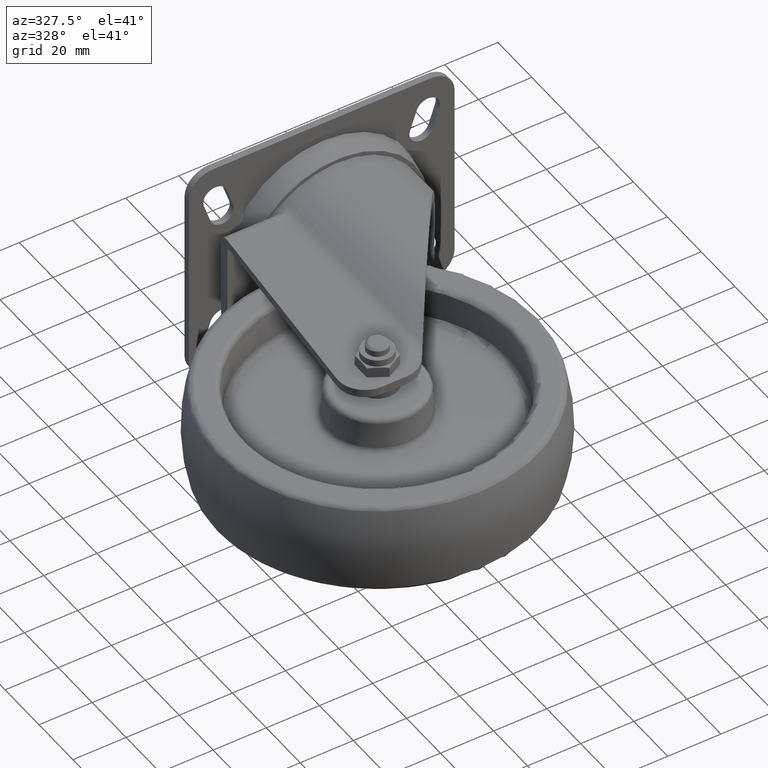
[diagram: clean part render]
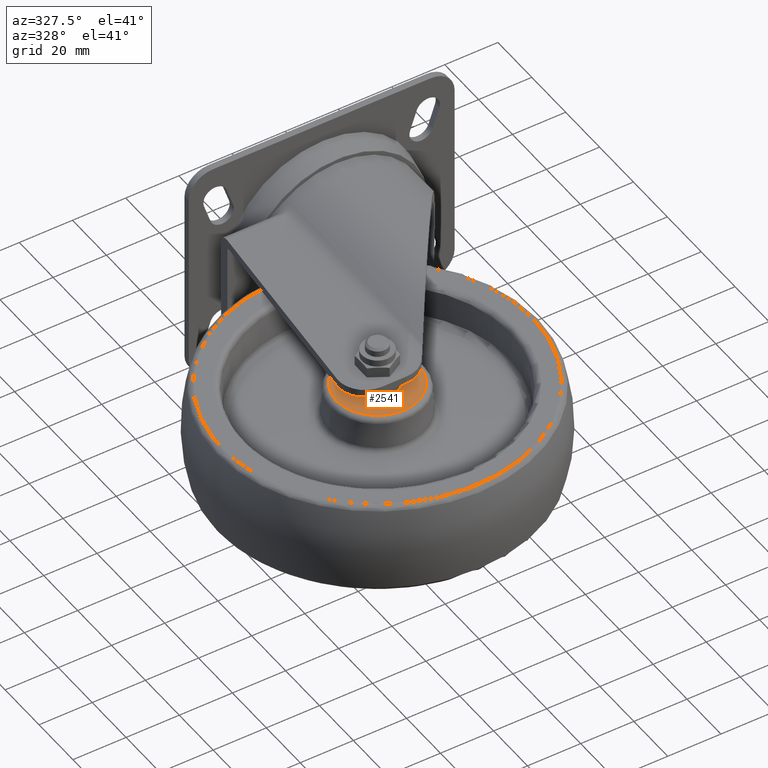
[diagram: same view with one face highlighted and labeled with its STEP entity id]
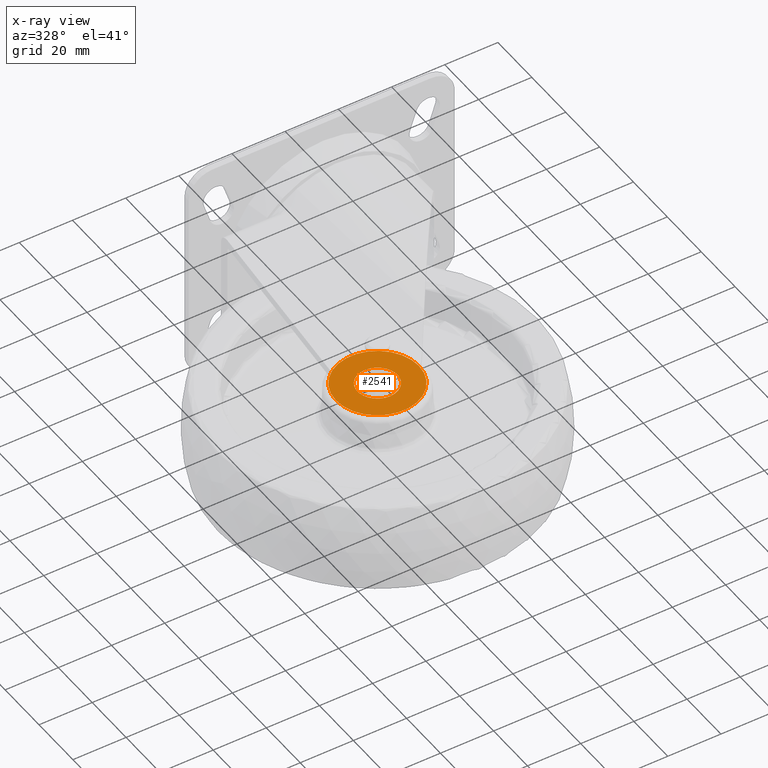
[diagram: x-ray of the same camera — body ghosted, the highlighted face saturated]
A machine part, auxiliary view. The second image highlights one B-rep face of the part: STEP entity #2541.
The next image is the same camera in x-ray: the body ghosted, the highlighted face saturated — about 0% of this face is hidden behind the body in this view.
In plain terms, the highlighted planar face has unit normal (0, 0, 1).
Its self-contained STEP definition (entity closure, byte-faithful):
#179=FACE_BOUND('',#496,.T.);
#324=FACE_OUTER_BOUND('',#495,.T.);
#495=EDGE_LOOP('',(#2176));
#496=EDGE_LOOP('',(#2177));
#599=CIRCLE('',#2749,7.5);
#661=CIRCLE('',#2864,15.6020708665702);
#1079=VERTEX_POINT('',#4361);
#1144=VERTEX_POINT('',#4650);
#1375=EDGE_CURVE('',#1079,#1079,#599,.T.);
#1486=EDGE_CURVE('',#1144,#1144,#661,.T.);
#2176=ORIENTED_EDGE('',*,*,#1486,.F.);
#2177=ORIENTED_EDGE('',*,*,#1375,.T.);
#2248=PLANE('',#2877);
#2541=ADVANCED_FACE('',(#324,#179),#2248,.T.);
#2749=AXIS2_PLACEMENT_3D('',#4363,#3349,#3350);
#2864=AXIS2_PLACEMENT_3D('',#4652,#3598,#3599);
#2877=AXIS2_PLACEMENT_3D('',#4671,#3624,#3625);
#3349=DIRECTION('center_axis',(0.,0.,-1.));
#3350=DIRECTION('ref_axis',(1.,0.,0.));
#3598=DIRECTION('center_axis',(0.,0.,-1.));
#3599=DIRECTION('ref_axis',(1.,0.,0.));
#3624=DIRECTION('center_axis',(0.,0.,1.));
#3625=DIRECTION('ref_axis',(1.,0.,0.));
#4361=CARTESIAN_POINT('',(9.18485099360515E-16,-7.5,17.5));
#4363=CARTESIAN_POINT('Origin',(0.,0.,17.5));
#4650=CARTESIAN_POINT('',(15.6020708665702,-3.82127902319778E-15,17.5));
#4652=CARTESIAN_POINT('Origin',(0.,0.,17.5));
#4671=CARTESIAN_POINT('Origin',(11.5510354332851,-2.82909427696567E-15,
17.5));